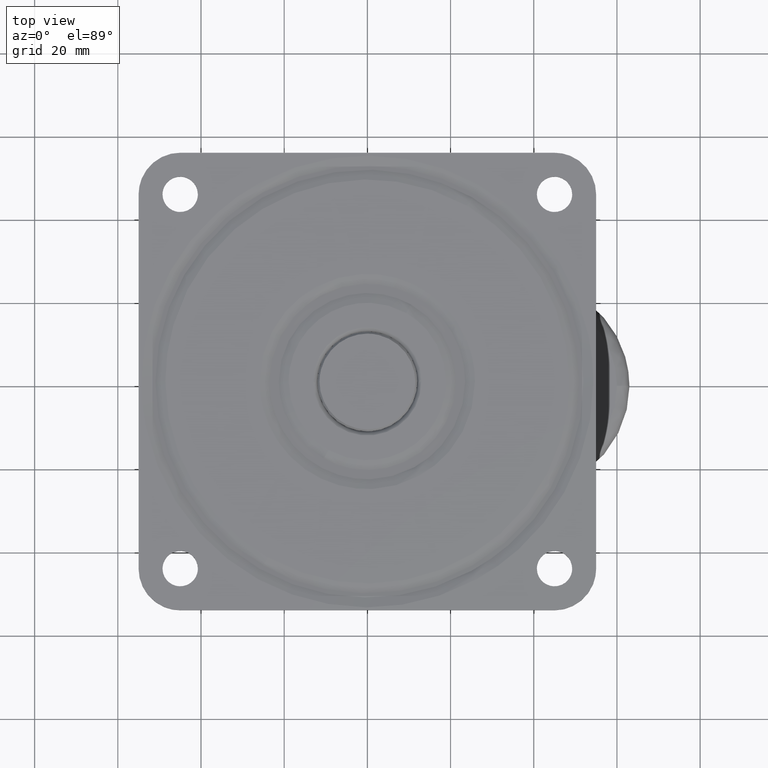
[diagram: clean part render]
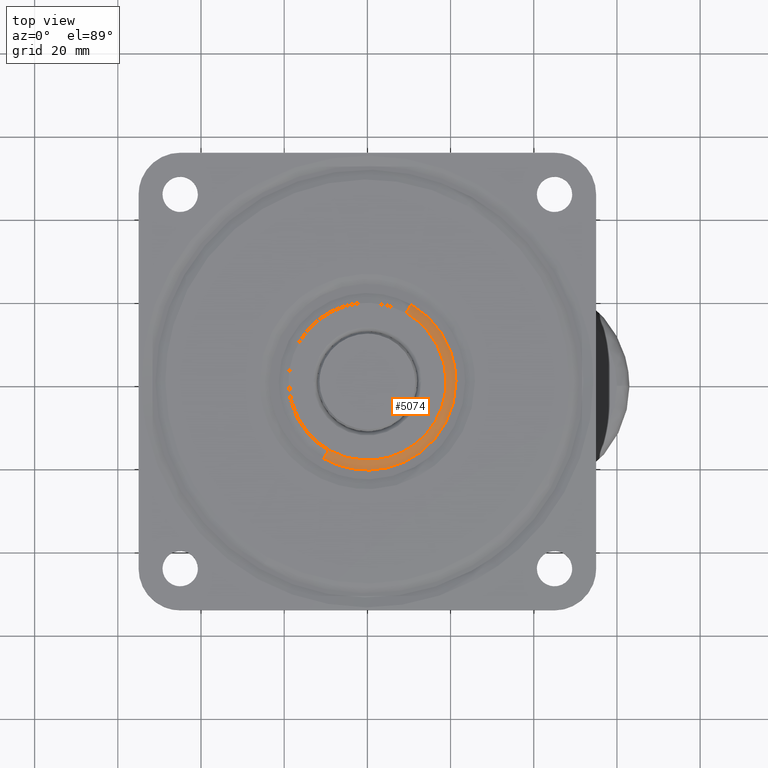
[diagram: same view with one face highlighted and labeled with its STEP entity id]
A machine part, top view. The second image highlights one B-rep face of the part: STEP entity #5074.
In plain terms, the highlighted face is a freeform B-spline surface patch.
Its self-contained STEP definition (entity closure, byte-faithful):
#4910=CARTESIAN_POINT('',(-9.324929774476649,-16.468342059775200,-9.427636E-016));
#4911=VERTEX_POINT('',#4910);
#4925=CARTESIAN_POINT('',(18.925131582592400,0.0,0.0));
#4926=VERTEX_POINT('',#4925);
#4927=CARTESIAN_POINT('',(-9.324929774476649,-16.468342059775207,-9.427636E-016));
#4928=CARTESIAN_POINT('',(-4.986103505594615,-18.925131584253140,-8.703658E-016));
#4929=CARTESIAN_POINT('',(-8.061891E-010,-18.925131584016171,-7.461733E-016));
#4930=CARTESIAN_POINT('',(18.925131582295510,-18.925131583116727,-2.747915E-016));
#4931=CARTESIAN_POINT('',(18.925131582592400,0.0,0.0));
#4939=(BOUNDED_CURVE()B_SPLINE_CURVE(2,(#4927,#4928,#4929,#4930,#4931),.UNSPECIFIED.,.F.,.U.)B_SPLINE_CURVE_WITH_KNOTS((3,2,3),(0.166016361512509,0.250000000000000,0.500000000000000),.UNSPECIFIED.)CURVE()GEOMETRIC_REPRESENTATION_ITEM()RATIONAL_B_SPLINE_CURVE((0.869321279798709,0.901607047182933,1.0,0.707106781186548,1.0))REPRESENTATION_ITEM(''));
#4940=EDGE_CURVE('',#4911,#4926,#4939,.T.);
#4942=CARTESIAN_POINT('',(9.324929774476642,16.468342059775210,-9.427636E-016));
#4943=VERTEX_POINT('',#4942);
#4944=CARTESIAN_POINT('',(18.925131582592400,0.0,0.0));
#4945=CARTESIAN_POINT('',(18.925131583101688,11.032384549246325,-4.713818E-016));
#4946=CARTESIAN_POINT('',(9.324929774476642,16.468342059775207,-9.427636E-016));
#4954=(BOUNDED_CURVE()B_SPLINE_CURVE(2,(#4944,#4945,#4946),.UNSPECIFIED.,.F.,.U.)B_SPLINE_CURVE_WITH_KNOTS((3,3),(0.500000000000000,0.666016361512509),.UNSPECIFIED.)CURVE()GEOMETRIC_REPRESENTATION_ITEM()RATIONAL_B_SPLINE_CURVE((1.0,0.805499734003614,0.869321279798709))REPRESENTATION_ITEM(''));
#4955=EDGE_CURVE('',#4926,#4943,#4954,.T.);
#4981=CARTESIAN_POINT('',(-11.068507553386523,-18.332999681562541,-0.659360744550767));
#4982=CARTESIAN_POINT('',(-10.809636608305265,-18.479581127021071,-0.659360744550767));
#4983=CARTESIAN_POINT('',(8.080147079488457,-29.175612682383363,-0.659360744550767));
#4984=CARTESIAN_POINT('',(18.627879880935907,-10.547732801447454,-0.659360744550767));
#4985=CARTESIAN_POINT('',(29.175612682383363,8.080147079488455,-0.659360744550767));
#4986=CARTESIAN_POINT('',(10.285828994768979,18.776178634749201,-0.659360744550767));
#4987=CARTESIAN_POINT('',(10.026958049862925,18.922760080108517,-0.659360744550767));
#4988=CARTESIAN_POINT('',(-10.442774737480432,-17.296585380951640,0.032547448619094));
#4989=CARTESIAN_POINT('',(-10.198538470529057,-17.434880178893863,0.032547448619094));
#4990=CARTESIAN_POINT('',(7.623354403457191,-27.526235998898368,0.032547448619094));
#4991=CARTESIAN_POINT('',(17.574795201177775,-9.951440797720590,0.032547448619094));
#4992=CARTESIAN_POINT('',(27.526235998898368,7.623354403457190,0.032547448619094));
#4993=CARTESIAN_POINT('',(9.704343125081325,17.714710223365881,0.032547448619094));
#4994=CARTESIAN_POINT('',(9.460106858295246,17.853005021214511,0.032547448619094));
#4995=CARTESIAN_POINT('',(-9.722205463200616,-16.103091478345611,-0.001490734219489));
#4996=CARTESIAN_POINT('',(-9.494821915383200,-16.231843699272151,-0.001490734219489));
#4997=CARTESIAN_POINT('',(7.097329942701435,-25.626878749891315,-0.001490734219489));
#4998=CARTESIAN_POINT('',(16.362104346296380,-9.264774403594943,-0.001490734219489));
#4999=CARTESIAN_POINT('',(25.626878749891315,7.097329942701433,-0.001490734219489));
#5000=CARTESIAN_POINT('',(9.034726891964214,16.492364993231405,-0.001490734219489));
#5001=CARTESIAN_POINT('',(8.807343344300689,16.621117214070807,-0.001490734219489));
#5009=(BOUNDED_SURFACE()B_SPLINE_SURFACE(2,2,((#4981,#4988,#4995),(#4982,#4989,#4996),(#4983,#4990,#4997),(#4984,#4991,#4998),(#4985,#4992,#4999),(#4986,#4993,#5000),(#4987,#4994,#5001)),.UNSPECIFIED.,.F.,.F.,.U.)B_SPLINE_SURFACE_WITH_KNOTS((3,1,2,1,3),(3,3),(0.0,0.709360104581764,36.177365309394553,71.645370514207343,72.354730618300508),(0.0,2.736871351947793),.UNSPECIFIED.)GEOMETRIC_REPRESENTATION_ITEM()RATIONAL_B_SPLINE_SURFACE(((0.955221960362240,0.920614074612624,0.956228126875800),(0.949691196593528,0.915283691539246,0.950691537372829),(0.667622244578453,0.643434154979349,0.668325472910795),(0.944160432824815,0.909953308465867,0.945154947869858),(0.667622244578453,0.643434154979349,0.668325472910795),(0.949691196589718,0.915283691535574,0.950691537369016),(0.955221960354621,0.920614074605281,0.956228126868173)))REPRESENTATION_ITEM('')SURFACE());
#5010=ORIENTED_EDGE('',*,*,#4940,.F.);
#5011=CARTESIAN_POINT('',(-10.495092374976521,-18.534913974443700,-0.599999999991372));
#5012=VERTEX_POINT('',#5011);
#5013=CARTESIAN_POINT('',(-10.495092374976513,-18.534913974443697,-0.599999999991372));
#5014=CARTESIAN_POINT('',(-9.947356689645472,-17.567582439911412,-5.222809E-010));
#5015=CARTESIAN_POINT('',(-9.324929774476649,-16.468342059775207,-9.427636E-016));
#5023=(BOUNDED_CURVE()B_SPLINE_CURVE(2,(#5013,#5014,#5015),.UNSPECIFIED.,.F.,.U.)B_SPLINE_CURVE_WITH_KNOTS((3,3),(-1.437183363580760,-0.548816174457301),.UNSPECIFIED.)CURVE()GEOMETRIC_REPRESENTATION_ITEM()RATIONAL_B_SPLINE_CURVE((0.941196666379448,0.912962239485301,0.942100852248990))REPRESENTATION_ITEM(''));
#5024=EDGE_CURVE('',#5012,#4911,#5023,.T.);
#5025=ORIENTED_EDGE('',*,*,#5024,.F.);
#5026=CARTESIAN_POINT('',(21.300000000000001,0.0,-0.600000000000000));
#5027=VERTEX_POINT('',#5026);
#5028=CARTESIAN_POINT('',(21.300000000000001,0.0,-0.600000000000000));
#5029=CARTESIAN_POINT('',(21.300000000002299,-21.299999999995951,-0.599999999997485));
#5030=CARTESIAN_POINT('',(6.240972E-012,-21.299999999988980,-0.599999999993171));
#5031=CARTESIAN_POINT('',(-5.611797422989702,-21.299999999987151,-0.599999999992034));
#5032=CARTESIAN_POINT('',(-10.495092374976515,-18.534913974443700,-0.599999999991372));
#5040=(BOUNDED_CURVE()B_SPLINE_CURVE(2,(#5028,#5029,#5030,#5031,#5032),.UNSPECIFIED.,.F.,.U.)B_SPLINE_CURVE_WITH_KNOTS((3,2,3),(0.500000000000000,0.750000000000000,0.833983638484593),.UNSPECIFIED.)CURVE()GEOMETRIC_REPRESENTATION_ITEM()RATIONAL_B_SPLINE_CURVE((1.0,0.707106781186548,1.0,0.901607047186328,0.869321279800937))REPRESENTATION_ITEM(''));
#5041=EDGE_CURVE('',#5027,#5012,#5040,.T.);
#5042=ORIENTED_EDGE('',*,*,#5041,.F.);
#5043=CARTESIAN_POINT('',(10.495092374976510,18.534913974443700,-0.599999999991372));
#5044=VERTEX_POINT('',#5043);
#5045=CARTESIAN_POINT('',(10.495092374976508,18.534913974443707,-0.599999999991372));
#5046=CARTESIAN_POINT('',(21.299999999996054,12.416811468877516,-0.599999999995686));
#5047=CARTESIAN_POINT('',(21.300000000000001,0.0,-0.600000000000000));
#5055=(BOUNDED_CURVE()B_SPLINE_CURVE(2,(#5045,#5046,#5047),.UNSPECIFIED.,.F.,.U.)B_SPLINE_CURVE_WITH_KNOTS((3,3),(0.333983638484593,0.500000000000000),.UNSPECIFIED.)CURVE()GEOMETRIC_REPRESENTATION_ITEM()RATIONAL_B_SPLINE_CURVE((0.869321279800937,0.805499734000219,1.0))REPRESENTATION_ITEM(''));
#5056=EDGE_CURVE('',#5044,#5027,#5055,.T.);
#5057=ORIENTED_EDGE('',*,*,#5056,.F.);
#5058=CARTESIAN_POINT('',(10.495092374976508,18.534913974443704,-0.599999999991372));
#5059=CARTESIAN_POINT('',(9.947356689645467,17.567582439911423,-5.222804E-010));
#5060=CARTESIAN_POINT('',(9.324929774476642,16.468342059775207,-9.427636E-016));
#5068=(BOUNDED_CURVE()B_SPLINE_CURVE(2,(#5058,#5059,#5060),.UNSPECIFIED.,.F.,.U.)B_SPLINE_CURVE_WITH_KNOTS((3,3),(-1.437183363580762,-0.548816174457302),.UNSPECIFIED.)CURVE()GEOMETRIC_REPRESENTATION_ITEM()RATIONAL_B_SPLINE_CURVE((0.941196666379448,0.912962239485301,0.942100852248990))REPRESENTATION_ITEM(''));
#5069=EDGE_CURVE('',#5044,#4943,#5068,.T.);
#5070=ORIENTED_EDGE('',*,*,#5069,.T.);
#5071=ORIENTED_EDGE('',*,*,#4955,.F.);
#5072=EDGE_LOOP('',(#5010,#5025,#5042,#5057,#5070,#5071));
#5073=FACE_OUTER_BOUND('',#5072,.T.);
#5074=ADVANCED_FACE('',(#5073),#5009,.T.);